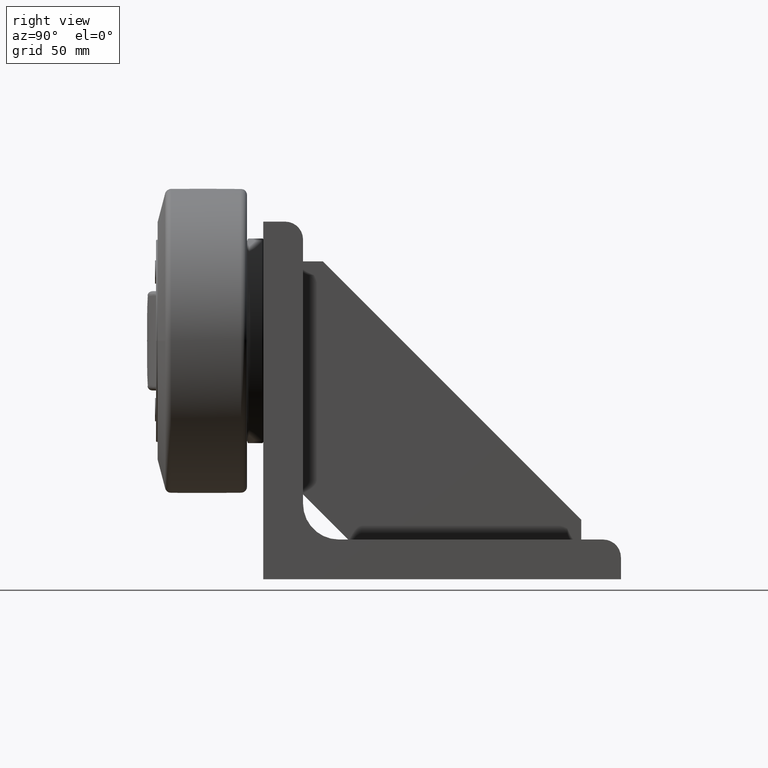
[diagram: clean part render]
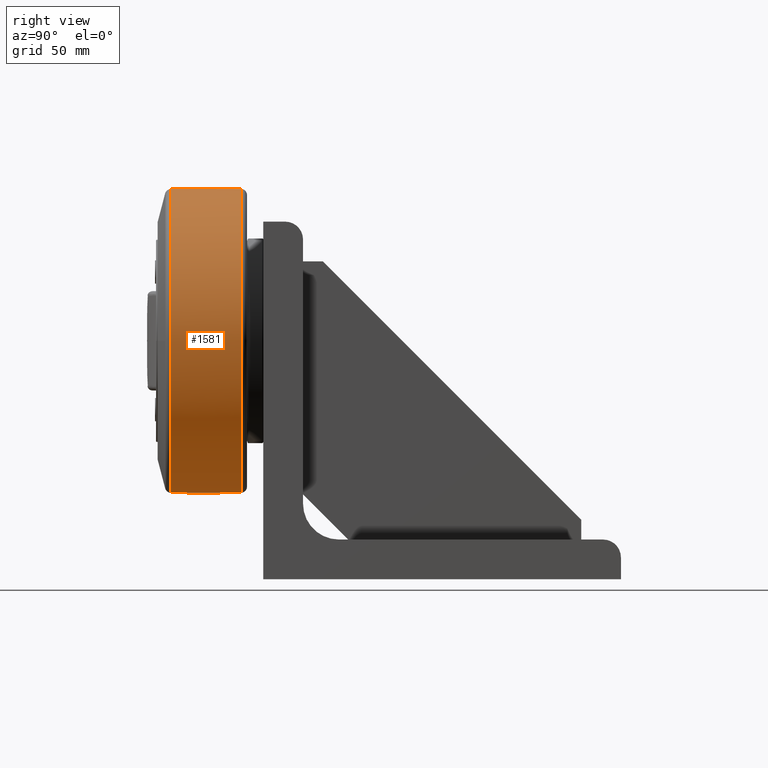
[diagram: same view with one face highlighted and labeled with its STEP entity id]
A machine part, right view. The second image highlights one B-rep face of the part: STEP entity #1581.
In plain terms, the highlighted face is a freeform B-spline surface patch.
Its self-contained STEP definition (entity closure, byte-faithful):
#29=(
BOUNDED_SURFACE()
B_SPLINE_SURFACE(2,2,((#2484,#2485,#2486,#2487,#2488,#2489,#2490,#2491,
#2492),(#2493,#2494,#2495,#2496,#2497,#2498,#2499,#2500,#2501),(#2502,#2503,
#2504,#2505,#2506,#2507,#2508,#2509,#2510)),.UNSPECIFIED.,.F.,.T.,.F.)
B_SPLINE_SURFACE_WITH_KNOTS((3,3),(3,2,2,2,3),(-0.0130264205048223,0.0105451265650286),
(-3.14159265358979,-1.5707963267949,0.,1.5707963267949,3.14159265358979),
 .UNSPECIFIED.)
GEOMETRIC_REPRESENTATION_ITEM()
RATIONAL_B_SPLINE_SURFACE(((1.,0.707106781186548,1.,0.707106781186548,1.,
0.707106781186548,1.,0.707106781186548,1.),(0.999930548575023,0.707057671612983,
0.999930548575023,0.707057671612983,0.999930548575023,0.707057671612983,
0.999930548575023,0.707057671612983,0.999930548575023),(1.,0.707106781186548,
1.,0.707106781186548,1.,0.707106781186548,1.,0.707106781186548,1.)))
REPRESENTATION_ITEM('')
SURFACE()
);
#96=CIRCLE('',#1709,76.4666010021284);
#97=CIRCLE('',#1710,76.4666010021284);
#99=CIRCLE('',#1712,1500.);
#100=CIRCLE('',#1713,76.422736076232);
#101=CIRCLE('',#1714,76.422736076232);
#181=FACE_OUTER_BOUND('',#272,.T.);
#272=EDGE_LOOP('',(#1193,#1194,#1195,#1196,#1197,#1198));
#714=VERTEX_POINT('',#2478);
#715=VERTEX_POINT('',#2480);
#716=VERTEX_POINT('',#2511);
#717=VERTEX_POINT('',#2513);
#900=EDGE_CURVE('',#714,#715,#96,.T.);
#901=EDGE_CURVE('',#715,#714,#97,.T.);
#903=EDGE_CURVE('',#714,#716,#99,.T.);
#904=EDGE_CURVE('',#717,#716,#100,.T.);
#905=EDGE_CURVE('',#716,#717,#101,.T.);
#1193=ORIENTED_EDGE('',*,*,#901,.F.);
#1194=ORIENTED_EDGE('',*,*,#900,.F.);
#1195=ORIENTED_EDGE('',*,*,#903,.T.);
#1196=ORIENTED_EDGE('',*,*,#904,.F.);
#1197=ORIENTED_EDGE('',*,*,#905,.F.);
#1198=ORIENTED_EDGE('',*,*,#903,.F.);
#1581=ADVANCED_FACE('',(#181),#29,.F.);
#1709=AXIS2_PLACEMENT_3D('',#2481,#2000,#2001);
#1710=AXIS2_PLACEMENT_3D('',#2482,#2002,#2003);
#1712=AXIS2_PLACEMENT_3D('',#2512,#2006,#2007);
#1713=AXIS2_PLACEMENT_3D('',#2514,#2008,#2009);
#1714=AXIS2_PLACEMENT_3D('',#2515,#2010,#2011);
#2000=DIRECTION('center_axis',(-2.42488790685022E-16,-1.,6.88904874983737E-17));
#2001=DIRECTION('ref_axis',(1.,-2.36176575775944E-16,2.93868954319699E-16));
#2002=DIRECTION('center_axis',(-2.42488790685022E-16,-1.,6.88904874983737E-17));
#2003=DIRECTION('ref_axis',(1.,-2.36176575775944E-16,2.93868954319699E-16));
#2006=DIRECTION('center_axis',(1.,-2.42488790685022E-16,4.64103681097387E-16));
#2007=DIRECTION('ref_axis',(4.64103681097387E-16,-5.80129601371734E-17,
-1.));
#2008=DIRECTION('center_axis',(2.42488790685022E-16,1.,-6.88904874983737E-17));
#2009=DIRECTION('ref_axis',(1.,-2.36243244669676E-16,2.93868954319699E-16));
#2010=DIRECTION('center_axis',(2.42488790685022E-16,1.,-6.88904874983737E-17));
#2011=DIRECTION('ref_axis',(1.,-2.36243244669676E-16,2.93868954319699E-16));
#2478=CARTESIAN_POINT('',(100.,-46.5173966954601,43.5333989978716));
#2480=CARTESIAN_POINT('',(23.5333989978716,-46.51739669546,120.));
#2481=CARTESIAN_POINT('Origin',(100.,-46.5173966954601,120.));
#2482=CARTESIAN_POINT('Origin',(100.,-46.5173966954601,120.));
#2484=CARTESIAN_POINT('Ctrl Pts',(100.,-11.1609218436872,43.5772639237685));
#2485=CARTESIAN_POINT('Ctrl Pts',(176.422736076232,-11.1609218436872,43.5772639237686));
#2486=CARTESIAN_POINT('Ctrl Pts',(176.422736076232,-11.1609218436872,120.));
#2487=CARTESIAN_POINT('Ctrl Pts',(176.422736076232,-11.1609218436872,196.422736076232));
#2488=CARTESIAN_POINT('Ctrl Pts',(100.,-11.1609218436872,196.422736076232));
#2489=CARTESIAN_POINT('Ctrl Pts',(23.5772639237685,-11.1609218436872,196.422736076232));
#2490=CARTESIAN_POINT('Ctrl Pts',(23.5772639237685,-11.1609218436872,120.));
#2491=CARTESIAN_POINT('Ctrl Pts',(23.5772639237686,-11.1609218436872,43.5772639237685));
#2492=CARTESIAN_POINT('Ctrl Pts',(100.,-11.1609218436872,43.5772639237685));
#2493=CARTESIAN_POINT('Ctrl Pts',(100.,-28.838900766563,43.3469701104925));
#2494=CARTESIAN_POINT('Ctrl Pts',(176.653029889508,-28.8389007665631,43.3469701104926));
#2495=CARTESIAN_POINT('Ctrl Pts',(176.653029889508,-28.8389007665631,120.));
#2496=CARTESIAN_POINT('Ctrl Pts',(176.653029889508,-28.838900766563,196.653029889508));
#2497=CARTESIAN_POINT('Ctrl Pts',(100.,-28.838900766563,196.653029889508));
#2498=CARTESIAN_POINT('Ctrl Pts',(23.3469701104924,-28.838900766563,196.653029889508));
#2499=CARTESIAN_POINT('Ctrl Pts',(23.3469701104925,-28.838900766563,120.));
#2500=CARTESIAN_POINT('Ctrl Pts',(23.3469701104925,-28.838900766563,43.3469701104924));
#2501=CARTESIAN_POINT('Ctrl Pts',(100.,-28.838900766563,43.3469701104925));
#2502=CARTESIAN_POINT('Ctrl Pts',(100.,-46.51739669546,43.5333989978717));
#2503=CARTESIAN_POINT('Ctrl Pts',(176.466601002128,-46.51739669546,43.5333989978718));
#2504=CARTESIAN_POINT('Ctrl Pts',(176.466601002128,-46.51739669546,120.));
#2505=CARTESIAN_POINT('Ctrl Pts',(176.466601002128,-46.51739669546,196.466601002128));
#2506=CARTESIAN_POINT('Ctrl Pts',(100.,-46.51739669546,196.466601002128));
#2507=CARTESIAN_POINT('Ctrl Pts',(23.5333989978716,-46.51739669546,196.466601002128));
#2508=CARTESIAN_POINT('Ctrl Pts',(23.5333989978717,-46.51739669546,120.));
#2509=CARTESIAN_POINT('Ctrl Pts',(23.5333989978718,-46.51739669546,43.5333989978716));
#2510=CARTESIAN_POINT('Ctrl Pts',(100.,-46.51739669546,43.5333989978717));
#2511=CARTESIAN_POINT('',(100.,-11.1609218436874,43.5772639237681));
#2512=CARTESIAN_POINT('Origin',(99.9999999999994,-30.6999999999998,1543.45));
#2513=CARTESIAN_POINT('',(23.5772639237681,-11.1609218436874,120.));
#2514=CARTESIAN_POINT('Origin',(100.,-11.1609218436874,120.));
#2515=CARTESIAN_POINT('Origin',(100.,-11.1609218436874,120.));